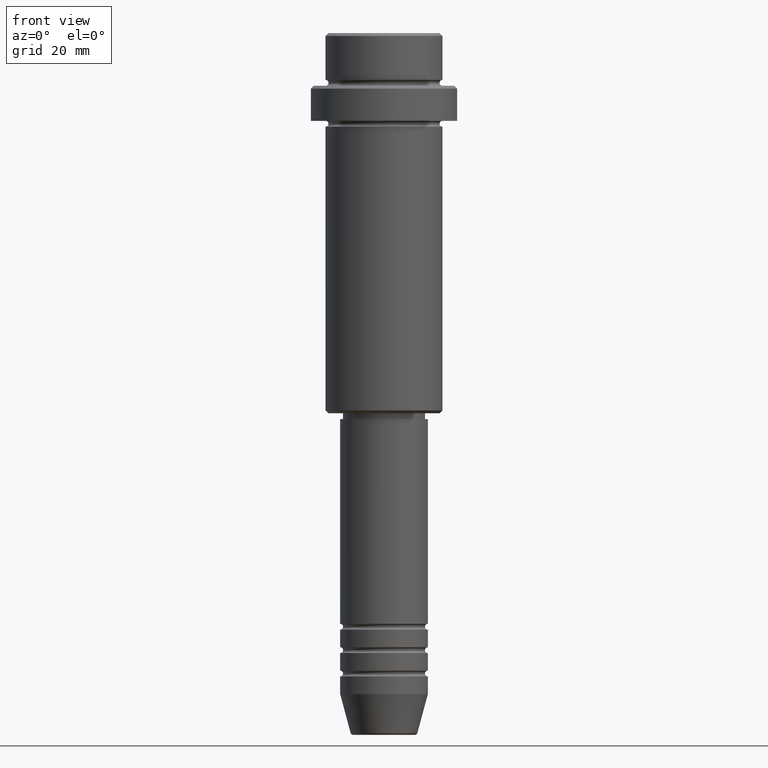
[diagram: clean part render]
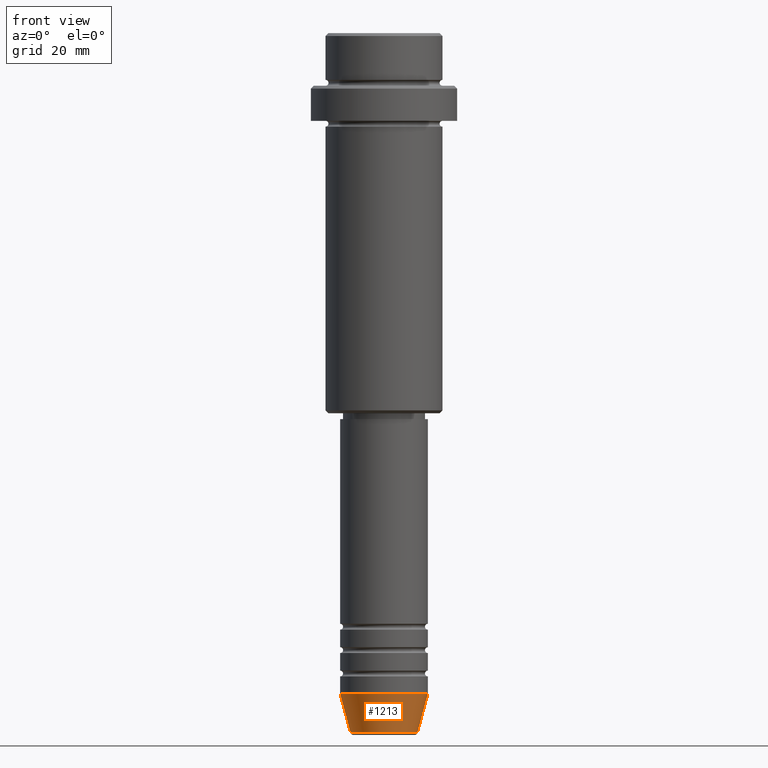
[diagram: same view with one face highlighted and labeled with its STEP entity id]
A machine part, front view. The second image highlights one B-rep face of the part: STEP entity #1213.
In plain terms, the highlighted conical surface has half-angle 15 deg.
Its self-contained STEP definition (entity closure, byte-faithful):
#19 = EDGE_LOOP ( 'NONE', ( #253, #301, #120, #587 ) ) ;
#76 = DIRECTION ( 'NONE',  ( 1.000000000000000000, 0.000000000000000000, 0.000000000000000000 ) ) ;
#88 = CARTESIAN_POINT ( 'NONE',  ( 0.000000000000000000, 0.000000000000000000, -119.6294095225512564 ) ) ;
#120 = ORIENTED_EDGE ( 'NONE', *, *, #731, .T. ) ;
#180 = DIRECTION ( 'NONE',  ( 1.000000000000000000, 0.000000000000000000, 0.000000000000000000 ) ) ;
#190 = DIRECTION ( 'NONE',  ( -0.000000000000000000, -0.000000000000000000, 1.000000000000000000 ) ) ;
#212 = EDGE_CURVE ( 'NONE', #254, #246, #402, .T. ) ;
#246 = VERTEX_POINT ( 'NONE', #403 ) ;
#253 = ORIENTED_EDGE ( 'NONE', *, *, #489, .F. ) ;
#254 = VERTEX_POINT ( 'NONE', #837 ) ;
#262 = EDGE_CURVE ( 'NONE', #363, #1281, #925, .T. ) ;
#301 = ORIENTED_EDGE ( 'NONE', *, *, #212, .T. ) ;
#313 = CONICAL_SURFACE ( 'NONE', #906, 7.500000000000000000, 0.2617993877991500740 ) ;
#363 = VERTEX_POINT ( 'NONE', #1303 ) ;
#402 = CIRCLE ( 'NONE', #808, 5.723655072137191269 ) ;
#403 = CARTESIAN_POINT ( 'NONE',  ( 5.723655072137191269, 0.000000000000000000, -119.6294095225512564 ) ) ;
#445 = VECTOR ( 'NONE', #842, 1000.000000000000000 ) ;
#467 = AXIS2_PLACEMENT_3D ( 'NONE', #633, #190, #613 ) ;
#489 = EDGE_CURVE ( 'NONE', #254, #363, #675, .T. ) ;
#587 = ORIENTED_EDGE ( 'NONE', *, *, #262, .F. ) ;
#613 = DIRECTION ( 'NONE',  ( 1.000000000000000000, 0.000000000000000000, 0.000000000000000000 ) ) ;
#633 = CARTESIAN_POINT ( 'NONE',  ( 0.000000000000000000, 0.000000000000000000, -113.0000000000000000 ) ) ;
#675 = LINE ( 'NONE', #1088, #789 ) ;
#724 = FACE_OUTER_BOUND ( 'NONE', #19, .T. ) ;
#731 = EDGE_CURVE ( 'NONE', #246, #1281, #1362, .T. ) ;
#789 = VECTOR ( 'NONE', #871, 1000.000000000000000 ) ;
#808 = AXIS2_PLACEMENT_3D ( 'NONE', #88, #848, #180 ) ;
#837 = CARTESIAN_POINT ( 'NONE',  ( -5.723655072137191269, 8.097153428560735915E-16, -119.6294095225512564 ) ) ;
#842 = DIRECTION ( 'NONE',  ( 0.2588190451025213501, 0.000000000000000000, 0.9659258262890680902 ) ) ;
#848 = DIRECTION ( 'NONE',  ( -0.000000000000000000, -0.000000000000000000, 1.000000000000000000 ) ) ;
#871 = DIRECTION ( 'NONE',  ( -0.2588190451025213501, 3.169619151431772337E-17, 0.9659258262890680902 ) ) ;
#906 = AXIS2_PLACEMENT_3D ( 'NONE', #1180, #1169, #76 ) ;
#925 = CIRCLE ( 'NONE', #467, 7.500000000000000000 ) ;
#1088 = CARTESIAN_POINT ( 'NONE',  ( -7.500000000000000000, 9.184850993605147944E-16, -113.0000000000000000 ) ) ;
#1169 = DIRECTION ( 'NONE',  ( -0.000000000000000000, -0.000000000000000000, 1.000000000000000000 ) ) ;
#1171 = CARTESIAN_POINT ( 'NONE',  ( 7.500000000000000000, 0.000000000000000000, -113.0000000000000000 ) ) ;
#1180 = CARTESIAN_POINT ( 'NONE',  ( 0.000000000000000000, 0.000000000000000000, -113.0000000000000000 ) ) ;
#1209 = CARTESIAN_POINT ( 'NONE',  ( 7.500000000000000000, 0.000000000000000000, -113.0000000000000000 ) ) ;
#1213 = ADVANCED_FACE ( 'NONE', ( #724 ), #313, .T. ) ;
#1281 = VERTEX_POINT ( 'NONE', #1209 ) ;
#1303 = CARTESIAN_POINT ( 'NONE',  ( -7.500000000000000000, 9.184850993605147944E-16, -113.0000000000000000 ) ) ;
#1362 = LINE ( 'NONE', #1171, #445 ) ;